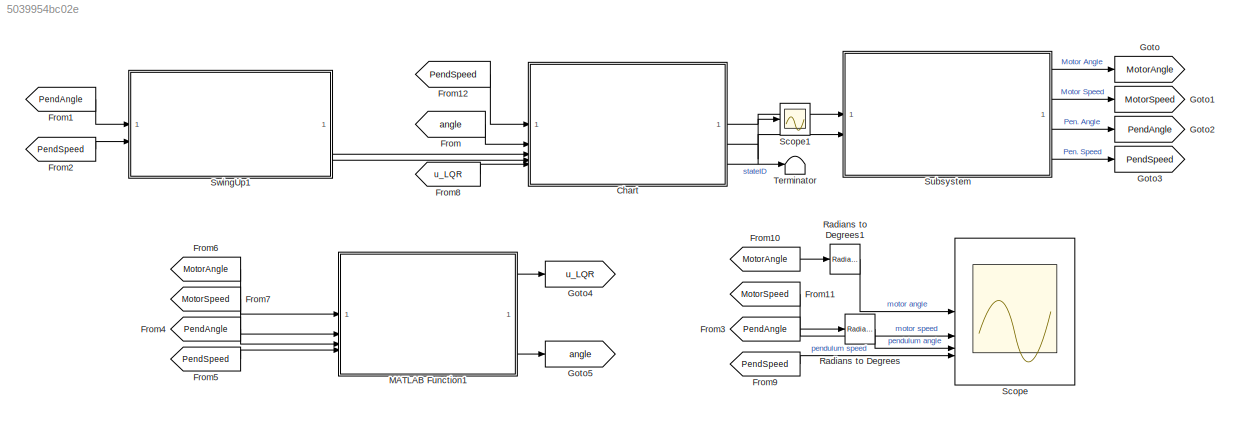
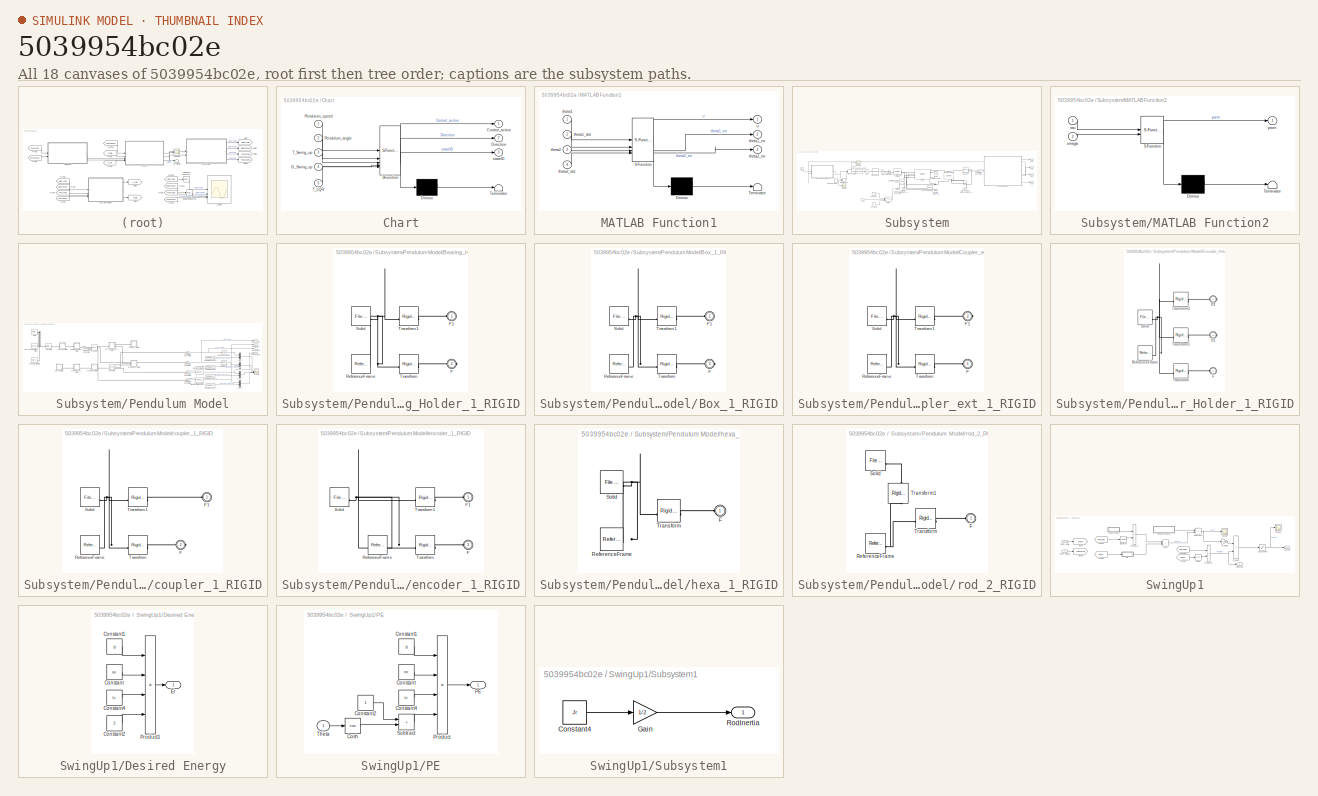
[diagram: thumbnail index - all 18 canvases of the model, root first then tree order]
MODEL slx_5039954bc02e
KIND model
CONFIG AbsTol = auto
CONFIG EnableMultiTasking = off
CONFIG FixedStep = 0.001
CONFIG MaxStep = 0.001
CONFIG MinStep = auto
CONFIG RelTol = 1e-3
CONFIG SampleTimeConstraint = Unconstrained
CONFIG SolverName = FixedStepAuto
CONFIG StartTime = 0.0
CONFIG StopTime = inf
WORKSPACE source: external: MATLAB File  (data not in archive)
BLOCK [SubSystem] Chart
  ErrorFcn = Stateflow.Translate.translate
  PermitHierarchicalResolution = ExplicitOnly
  PortSchema = {"entries":[{"content":{"sides":[{"content":{"connectorIds":["In1","In3","In2","In4","In5"]},"type":"ConnectorPlacement.EquallySpacedRectSide","uuid":"2e8d9252-ab42-449a-96c3-4e06d664c326"},{"content":{"connectorIds":["Out1","Out2","Out3"],"side":"RIGHT"},"type":"ConnectorPlacement.EquallySpacedRectSide","uuid":"944f291f-ee8a-4402-a6cd-5f62be233e4f"},{"content":{"side":"TOP"},"type":"ConnectorPlac...<+260ch>
  SFBlockType = Chart
  TreatAsAtomicUnit = on
BLOCK [Demux] Chart/ Demux 
  Outputs = 1
BLOCK [S-Function] Chart/ SFunction 
  EnableBusSupport = on
  FunctionName = sf_sfun
  PortCounts = [5 4]
  SFcnIsStateOwnerBlock = off
  SFunctionDeploymentMode = off
  Tag = Stateflow S-Function 3
BLOCK [Terminator] Chart/ Terminator 
BLOCK [Outport] Chart/Control_action
BLOCK [Inport] Chart/D_Swing_up
  Port = 4
BLOCK [Outport] Chart/Direction
  Port = 2
BLOCK [Inport] Chart/Pendulum_angle
  Port = 2
BLOCK [Inport] Chart/Pendulum_speed
BLOCK [Inport] Chart/T_LQR
  Port = 5
BLOCK [Inport] Chart/T_Swing_up
  Port = 3
BLOCK [Outport] Chart/stateID
  Port = 3
BLOCK [From] From
  GotoTag = angle
BLOCK [From] From1
  GotoTag = PendAngle
BLOCK [From] From10
  GotoTag = MotorAngle
BLOCK [From] From11
  GotoTag = MotorSpeed
BLOCK [From] From12
  GotoTag = PendSpeed
BLOCK [From] From2
  GotoTag = PendSpeed
BLOCK [From] From3
  GotoTag = PendAngle
BLOCK [From] From4
  GotoTag = PendAngle
BLOCK [From] From5
  GotoTag = PendSpeed
BLOCK [From] From6
  GotoTag = MotorAngle
BLOCK [From] From7
  GotoTag = MotorSpeed
BLOCK [From] From8
  GotoTag = u_LQR
BLOCK [From] From9
  GotoTag = PendSpeed
BLOCK [Goto] Goto
  GotoTag = MotorAngle
BLOCK [Goto] Goto1
  GotoTag = MotorSpeed
BLOCK [Goto] Goto2
  GotoTag = PendAngle
BLOCK [Goto] Goto3
  GotoTag = PendSpeed
BLOCK [Goto] Goto4
  GotoTag = u_LQR
BLOCK [Goto] Goto5
  GotoTag = angle
BLOCK [SubSystem] MATLAB Function1
  ErrorFcn = Stateflow.Translate.translate
  NameLocation = top
  PermitHierarchicalResolution = ExplicitOnly
  SFBlockType = MATLAB Function
  SystemSampleTime = 0.001
  TreatAsAtomicUnit = on
BLOCK [Demux] MATLAB Function1/ Demux 
  Outputs = 1
BLOCK [S-Function] MATLAB Function1/ SFunction 
  EnableBusSupport = on
  FunctionName = sf_sfun
  PortCounts = [4 4]
  SFcnIsStateOwnerBlock = off
  SFunctionDeploymentMode = off
  Tag = Stateflow S-Function 1
BLOCK [Terminator] MATLAB Function1/ Terminator 
BLOCK [Inport] MATLAB Function1/theta1
BLOCK [Inport] MATLAB Function1/theta1_dot
  Port = 2
BLOCK [Outport] MATLAB Function1/theta1_err
  Port = 2
BLOCK [Inport] MATLAB Function1/theta2
  Port = 3
BLOCK [Inport] MATLAB Function1/theta2_dot
  Port = 4
BLOCK [Outport] MATLAB Function1/theta2_err
  Port = 3
BLOCK [Outport] MATLAB Function1/u
BLOCK [Reference] Radians to Degrees  REF=simulink_extras/Transformations/Radians
to Degrees
  SourceBlock = simulink_extras/Transformations/Radians\nto Degrees
  SourceType = RadiansToDegrees
BLOCK [Reference] Radians to Degrees1  REF=simulink_extras/Transformations/Radians
to Degrees
  SourceBlock = simulink_extras/Transformations/Radians\nto Degrees
  SourceType = RadiansToDegrees
BLOCK [Scope] Scope
  Floating = off
  NumInputPorts = 4
  ScopeSpecificationString = Simulink.scopes.TimeScopeBlockCfg('CurrentConfiguration', extmgr.ConfigurationSet(extmgr.Configuration('Core','General UI',true),extmgr.Configuration('Core','Source UI',true),extmgr.Configuration('Sources','WiredSimulink',true,'DataLoggingVariableName','ScopeData1'),extmgr.Configuration('Visuals','Time Domain',true,'SerializedDisplays',{struct('MinYLimReal','-224.97096','MaxYLimReal','224.94809','...<+3972ch>
BLOCK [Scope] Scope1
  Floating = off
  NumInputPorts = 1
  ScopeSpecificationString = Simulink.scopes.TimeScopeBlockCfg('CurrentConfiguration', extmgr.ConfigurationSet(extmgr.Configuration('Core','General UI',true),extmgr.Configuration('Core','Source UI',true),extmgr.Configuration('Sources','WiredSimulink',true,'DataLoggingVariableName','ScopeData3'),extmgr.Configuration('Visuals','Time Domain',true,'SerializedDisplays',{struct('MinYLimReal','-3.18875','MaxYLimReal','3.0176','YLabe...<+1491ch>
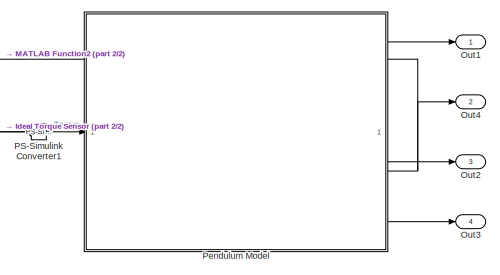
[diagram: Subsystem - part 1/2, middle right region]
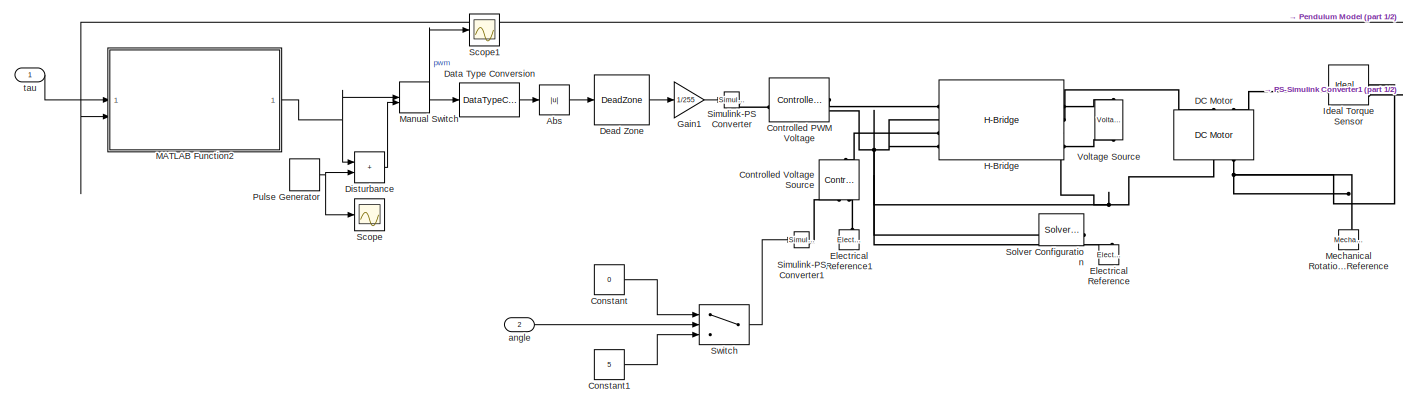
[diagram: Subsystem - part 2/2, most of the canvas]
BLOCK [SubSystem] Subsystem
BLOCK [Abs] Subsystem/Abs
  SaturateOnIntegerOverflow = off
BLOCK [Constant] Subsystem/Constant
  Value = 0
BLOCK [Constant] Subsystem/Constant1
  Value = 5
BLOCK [Reference] Subsystem/Controlled PWM Voltage  REF=ee_lib/Integrated Circuits/Controlled PWM
Voltage
  SourceBlock = ee_lib/Integrated Circuits/Controlled PWM\nVoltage
  SourceType = Controlled PWM\nVoltage
BLOCK [Reference] Subsystem/Controlled Voltage Source  REF=fl_lib/Electrical/Electrical Sources/Controlled Voltage
Source
  NameLocation = right
  SourceBlock = fl_lib/Electrical/Electrical Sources/Controlled Voltage\nSource
  SourceType = Controlled Voltage\nSource
BLOCK [Reference] Subsystem/DC Motor  REF=ee_lib/Electromechanical/Brushed Motors/DC Motor
  NameLocation = right
  SourceBlock = ee_lib/Electromechanical/Brushed Motors/DC Motor
  SourceType = DC Motor
BLOCK [DataTypeConversion] Subsystem/Data Type Conversion
  OutDataTypeStr = double
  RndMeth = Floor
  SaturateOnIntegerOverflow = off
BLOCK [DeadZone] Subsystem/Dead Zone
  LinearizeAsGain = off
  LowerValue = 0
  UpperValue = 55
BLOCK [Sum] Subsystem/Disturbance
  IconShape = rectangular
BLOCK [Reference] Subsystem/Electrical Reference  REF=fl_lib/Electrical/Electrical Elements/Electrical Reference
  NameLocation = right
  SourceBlock = fl_lib/Electrical/Electrical Elements/Electrical Reference
  SourceType = Electrical Reference
BLOCK [Reference] Subsystem/Electrical Reference1  REF=fl_lib/Electrical/Electrical Elements/Electrical Reference
  NameLocation = right
  SourceBlock = fl_lib/Electrical/Electrical Elements/Electrical Reference
  SourceType = Electrical Reference
BLOCK [Gain] Subsystem/Gain1
  Gain = 1/255
BLOCK [Reference] Subsystem/H-Bridge  REF=ee_lib/Semiconductors &
Converters/Converters/H-Bridge
  SourceBlock = ee_lib/Semiconductors &\nConverters/Converters/H-Bridge
  SourceType = H-Bridge
BLOCK [Reference] Subsystem/Ideal Torque Sensor  REF=fl_lib/Mechanical/Mechanical Sensors/Ideal Torque Sensor
  SourceBlock = fl_lib/Mechanical/Mechanical Sensors/Ideal Torque Sensor
  SourceType = Ideal Torque Sensor
BLOCK [SubSystem] Subsystem/MATLAB Function2
  ErrorFcn = Stateflow.Translate.translate
  PermitHierarchicalResolution = ExplicitOnly
  SFBlockType = MATLAB Function
  TreatAsAtomicUnit = on
BLOCK [Demux] Subsystem/MATLAB Function2/ Demux 
  Outputs = 1
BLOCK [S-Function] Subsystem/MATLAB Function2/ SFunction 
  EnableBusSupport = on
  FunctionName = sf_sfun
  PortCounts = [2 2]
  SFcnIsStateOwnerBlock = off
  SFunctionDeploymentMode = off
  Tag = Stateflow S-Function 4
BLOCK [Terminator] Subsystem/MATLAB Function2/ Terminator 
BLOCK [Inport] Subsystem/MATLAB Function2/omega
  Port = 2
BLOCK [Outport] Subsystem/MATLAB Function2/pwm
BLOCK [Inport] Subsystem/MATLAB Function2/tau
BLOCK [ManualSwitch] Subsystem/Manual Switch
  CurrentSetting = 0
BLOCK [Reference] Subsystem/Mechanical Rotational Reference  REF=fl_lib/Mechanical/Rotational Elements/Mechanical
Rotational Reference
  NameLocation = right
  SourceBlock = fl_lib/Mechanical/Rotational Elements/Mechanical\nRotational Reference
  SourceType = Mechanical\nRotational Reference
BLOCK [Outport] Subsystem/Out1
BLOCK [Outport] Subsystem/Out2
  Port = 3
BLOCK [Outport] Subsystem/Out3
  Port = 4
BLOCK [Outport] Subsystem/Out4
  Port = 2
BLOCK [Reference] Subsystem/PS-Simulink Converter1  REF=nesl_utility/PS-Simulink
Converter
  SourceBlock = nesl_utility/PS-Simulink\nConverter
  SourceType = PS-Simulink\nConverter
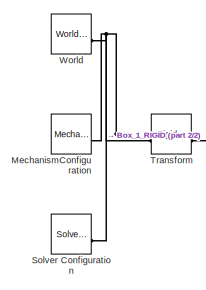
[diagram: Subsystem/Pendulum Model - part 1/2, middle left region]
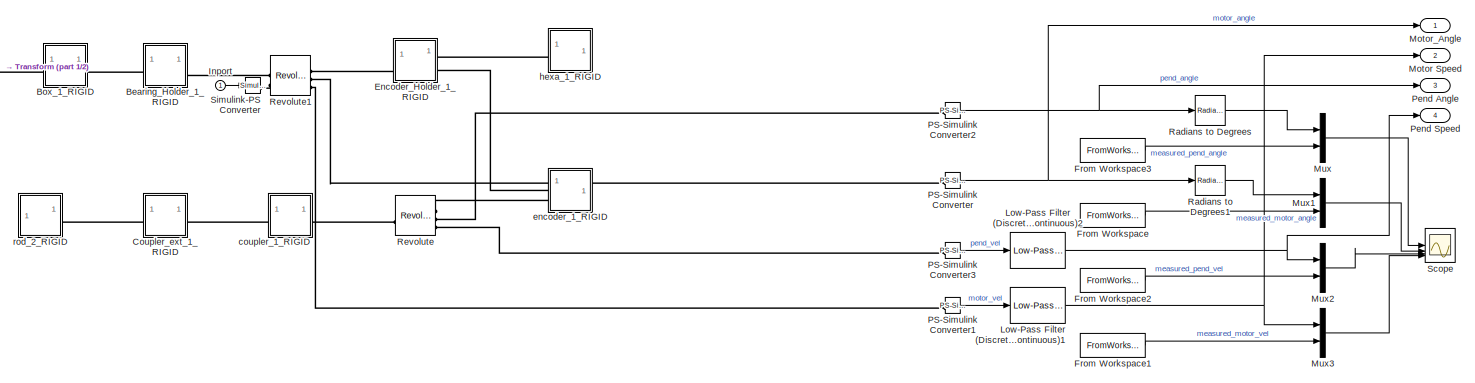
[diagram: Subsystem/Pendulum Model - part 2/2, most of the canvas]
BLOCK [SubSystem] Subsystem/Pendulum Model
BLOCK [SubSystem] Subsystem/Pendulum Model/Bearing_Holder_1_RIGID
BLOCK [PMIOPort] Subsystem/Pendulum Model/Bearing_Holder_1_RIGID/F
  Port = 2
  Side = Right
BLOCK [PMIOPort] Subsystem/Pendulum Model/Bearing_Holder_1_RIGID/F1
  Side = Left
BLOCK [Reference] Subsystem/Pendulum Model/Bearing_Holder_1_RIGID/ReferenceFrame  REF=sm_lib/Frames and
Transforms/Reference
Frame
  SourceBlock = sm_lib/Frames and\nTransforms/Reference\nFrame
  SourceType = Reference\nFrame
BLOCK [Reference] Subsystem/Pendulum Model/Bearing_Holder_1_RIGID/Solid  REF=sm_lib/Body Elements/File Solid
  SourceBlock = sm_lib/Body Elements/File Solid
  SourceType = File Solid
BLOCK [Reference] Subsystem/Pendulum Model/Bearing_Holder_1_RIGID/Transform  REF=sm_lib/Frames and
Transforms/Rigid
Transform
  SourceBlock = sm_lib/Frames and\nTransforms/Rigid\nTransform
  SourceType = Rigid\nTransform
BLOCK [Reference] Subsystem/Pendulum Model/Bearing_Holder_1_RIGID/Transform1  REF=sm_lib/Frames and
Transforms/Rigid
Transform
  SourceBlock = sm_lib/Frames and\nTransforms/Rigid\nTransform
  SourceType = Rigid\nTransform
BLOCK [SubSystem] Subsystem/Pendulum Model/Box_1_RIGID
BLOCK [PMIOPort] Subsystem/Pendulum Model/Box_1_RIGID/F
  Port = 2
  Side = Right
BLOCK [PMIOPort] Subsystem/Pendulum Model/Box_1_RIGID/F1
  Side = Left
BLOCK [Reference] Subsystem/Pendulum Model/Box_1_RIGID/ReferenceFrame  REF=sm_lib/Frames and
Transforms/Reference
Frame
  SourceBlock = sm_lib/Frames and\nTransforms/Reference\nFrame
  SourceType = Reference\nFrame
BLOCK [Reference] Subsystem/Pendulum Model/Box_1_RIGID/Solid  REF=sm_lib/Body Elements/File Solid
  SourceBlock = sm_lib/Body Elements/File Solid
  SourceType = File Solid
BLOCK [Reference] Subsystem/Pendulum Model/Box_1_RIGID/Transform  REF=sm_lib/Frames and
Transforms/Rigid
Transform
  SourceBlock = sm_lib/Frames and\nTransforms/Rigid\nTransform
  SourceType = Rigid\nTransform
BLOCK [Reference] Subsystem/Pendulum Model/Box_1_RIGID/Transform1  REF=sm_lib/Frames and
Transforms/Rigid
Transform
  SourceBlock = sm_lib/Frames and\nTransforms/Rigid\nTransform
  SourceType = Rigid\nTransform
BLOCK [SubSystem] Subsystem/Pendulum Model/Coupler_ext_1_RIGID
BLOCK [PMIOPort] Subsystem/Pendulum Model/Coupler_ext_1_RIGID/F
  Side = Left
BLOCK [PMIOPort] Subsystem/Pendulum Model/Coupler_ext_1_RIGID/F1
  Port = 2
  Side = Right
BLOCK [Reference] Subsystem/Pendulum Model/Coupler_ext_1_RIGID/ReferenceFrame  REF=sm_lib/Frames and
Transforms/Reference
Frame
  SourceBlock = sm_lib/Frames and\nTransforms/Reference\nFrame
  SourceType = Reference\nFrame
BLOCK [Reference] Subsystem/Pendulum Model/Coupler_ext_1_RIGID/Solid  REF=sm_lib/Body Elements/File Solid
  SourceBlock = sm_lib/Body Elements/File Solid
  SourceType = File Solid
BLOCK [Reference] Subsystem/Pendulum Model/Coupler_ext_1_RIGID/Transform  REF=sm_lib/Frames and
Transforms/Rigid
Transform
  SourceBlock = sm_lib/Frames and\nTransforms/Rigid\nTransform
  SourceType = Rigid\nTransform
BLOCK [Reference] Subsystem/Pendulum Model/Coupler_ext_1_RIGID/Transform1  REF=sm_lib/Frames and
Transforms/Rigid
Transform
  SourceBlock = sm_lib/Frames and\nTransforms/Rigid\nTransform
  SourceType = Rigid\nTransform
BLOCK [SubSystem] Subsystem/Pendulum Model/Encoder_Holder_1_RIGID
BLOCK [PMIOPort] Subsystem/Pendulum Model/Encoder_Holder_1_RIGID/F
  Port = 2
  Side = Left
BLOCK [PMIOPort] Subsystem/Pendulum Model/Encoder_Holder_1_RIGID/F1
  Port = 3
  Side = Right
BLOCK [PMIOPort] Subsystem/Pendulum Model/Encoder_Holder_1_RIGID/F2
  Side = Right
BLOCK [Reference] Subsystem/Pendulum Model/Encoder_Holder_1_RIGID/ReferenceFrame  REF=sm_lib/Frames and
Transforms/Reference
Frame
  SourceBlock = sm_lib/Frames and\nTransforms/Reference\nFrame
  SourceType = Reference\nFrame
BLOCK [Reference] Subsystem/Pendulum Model/Encoder_Holder_1_RIGID/Solid  REF=sm_lib/Body Elements/File Solid
  SourceBlock = sm_lib/Body Elements/File Solid
  SourceType = File Solid
BLOCK [Reference] Subsystem/Pendulum Model/Encoder_Holder_1_RIGID/Transform  REF=sm_lib/Frames and
Transforms/Rigid
Transform
  SourceBlock = sm_lib/Frames and\nTransforms/Rigid\nTransform
  SourceType = Rigid\nTransform
BLOCK [Reference] Subsystem/Pendulum Model/Encoder_Holder_1_RIGID/Transform1  REF=sm_lib/Frames and
Transforms/Rigid
Transform
  SourceBlock = sm_lib/Frames and\nTransforms/Rigid\nTransform
  SourceType = Rigid\nTransform
BLOCK [Reference] Subsystem/Pendulum Model/Encoder_Holder_1_RIGID/Transform2  REF=sm_lib/Frames and
Transforms/Rigid
Transform
  SourceBlock = sm_lib/Frames and\nTransforms/Rigid\nTransform
  SourceType = Rigid\nTransform
BLOCK [FromWorkspace] Subsystem/Pendulum Model/From Workspace
  Commented = on
  VariableName = ts_arm_angle1
BLOCK [FromWorkspace] Subsystem/Pendulum Model/From Workspace1
  Commented = on
  VariableName = ts_arm_speed1
BLOCK [FromWorkspace] Subsystem/Pendulum Model/From Workspace2
  Commented = on
  VariableName = ts_pend_speed1
BLOCK [FromWorkspace] Subsystem/Pendulum Model/From Workspace3
  Commented = on
  VariableName = ts_pend_angle1
BLOCK [Inport] Subsystem/Pendulum Model/Inport
BLOCK [Reference] Subsystem/Pendulum Model/Low-Pass Filter (Discrete or Continuous)1  REF=eeGeneralControl/Low-Pass Filter
(Discrete or Continuous)
  LibrarySourceBlock = ee_sl_lib/General Control/Low-Pass Filter\n(Discrete or Continuous)
  SourceBlock = eeGeneralControl/Low-Pass Filter\n(Discrete or Continuous)
  SourceType = Low-Pass Filter (Discrete or Continuous)
BLOCK [Reference] Subsystem/Pendulum Model/Low-Pass Filter (Discrete or Continuous)2  REF=eeGeneralControl/Low-Pass Filter
(Discrete or Continuous)
  LibrarySourceBlock = ee_sl_lib/General Control/Low-Pass Filter\n(Discrete or Continuous)
  SourceBlock = eeGeneralControl/Low-Pass Filter\n(Discrete or Continuous)
  SourceType = Low-Pass Filter (Discrete or Continuous)
BLOCK [Reference] Subsystem/Pendulum Model/MechanismConfiguration  REF=sm_lib/Utilities/Mechanism
Configuration
  SourceBlock = sm_lib/Utilities/Mechanism\nConfiguration
  SourceType = Mechanism\nConfiguration
BLOCK [Outport] Subsystem/Pendulum Model/Motor Speed
  Port = 2
BLOCK [Outport] Subsystem/Pendulum Model/Motor_Angle
BLOCK [Mux] Subsystem/Pendulum Model/Mux
  DisplayOption = bar
  Inputs = 2
BLOCK [Mux] Subsystem/Pendulum Model/Mux1
  DisplayOption = bar
  Inputs = 2
BLOCK [Mux] Subsystem/Pendulum Model/Mux2
  DisplayOption = bar
  Inputs = 2
BLOCK [Mux] Subsystem/Pendulum Model/Mux3
  DisplayOption = bar
  Inputs = 2
BLOCK [Reference] Subsystem/Pendulum Model/PS-Simulink Converter  REF=nesl_utility/PS-Simulink
Converter
  SourceBlock = nesl_utility/PS-Simulink\nConverter
  SourceType = PS-Simulink\nConverter
BLOCK [Reference] Subsystem/Pendulum Model/PS-Simulink Converter1  REF=nesl_utility/PS-Simulink
Converter
  SourceBlock = nesl_utility/PS-Simulink\nConverter
  SourceType = PS-Simulink\nConverter
BLOCK [Reference] Subsystem/Pendulum Model/PS-Simulink Converter2  REF=nesl_utility/PS-Simulink
Converter
  SourceBlock = nesl_utility/PS-Simulink\nConverter
  SourceType = PS-Simulink\nConverter
BLOCK [Reference] Subsystem/Pendulum Model/PS-Simulink Converter3  REF=nesl_utility/PS-Simulink
Converter
  SourceBlock = nesl_utility/PS-Simulink\nConverter
  SourceType = PS-Simulink\nConverter
BLOCK [Outport] Subsystem/Pendulum Model/Pend Angle
  Port = 3
BLOCK [Outport] Subsystem/Pendulum Model/Pend Speed
  Port = 4
BLOCK [Reference] Subsystem/Pendulum Model/Radians to Degrees  REF=simulink_extras/Transformations/Radians
to Degrees
  SourceBlock = simulink_extras/Transformations/Radians\nto Degrees
  SourceType = RadiansToDegrees
BLOCK [Reference] Subsystem/Pendulum Model/Radians to Degrees1  REF=simulink_extras/Transformations/Radians
to Degrees
  SourceBlock = simulink_extras/Transformations/Radians\nto Degrees
  SourceType = RadiansToDegrees
BLOCK [Reference] Subsystem/Pendulum Model/Revolute  REF=sm_lib/Joints/Revolute Joint
  SourceBlock = sm_lib/Joints/Revolute Joint
  SourceType = Revolute Joint
BLOCK [Reference] Subsystem/Pendulum Model/Revolute1  REF=sm_lib/Joints/Revolute Joint
  SourceBlock = sm_lib/Joints/Revolute Joint
  SourceType = Revolute Joint
BLOCK [Scope] Subsystem/Pendulum Model/Scope
  Floating = off
  NumInputPorts = 4
  ScopeSpecificationString = Simulink.scopes.TimeScopeBlockCfg('CurrentConfiguration', extmgr.ConfigurationSet(extmgr.Configuration('Core','General UI',true),extmgr.Configuration('Core','Source UI',true),extmgr.Configuration('Sources','WiredSimulink',true),extmgr.Configuration('Visuals','Time Domain',true,'SerializedDisplays',{struct('MinYLimReal','-224.83125','MaxYLimReal','224.98125','YLabelReal','','MinYLimMag',' 0.00000',...<+4083ch>
BLOCK [Reference] Subsystem/Pendulum Model/Simulink-PS Converter  REF=nesl_utility/Simulink-PS
Converter
  SourceBlock = nesl_utility/Simulink-PS\nConverter
  SourceType = Simulink-PS\nConverter
BLOCK [Reference] Subsystem/Pendulum Model/Solver Configuration  REF=nesl_utility/Solver
Configuration
  SourceBlock = nesl_utility/Solver\nConfiguration
  SourceType = Solver\nConfiguration
BLOCK [Reference] Subsystem/Pendulum Model/Transform  REF=sm_lib/Frames and
Transforms/Rigid
Transform
  SourceBlock = sm_lib/Frames and\nTransforms/Rigid\nTransform
  SourceType = Rigid\nTransform
BLOCK [Reference] Subsystem/Pendulum Model/World  REF=sm_lib/Frames and
Transforms/World Frame
  SourceBlock = sm_lib/Frames and\nTransforms/World Frame
  SourceType = World Frame
BLOCK [SubSystem] Subsystem/Pendulum Model/coupler_1_RIGID
BLOCK [PMIOPort] Subsystem/Pendulum Model/coupler_1_RIGID/F
  Port = 2
  Side = Right
BLOCK [PMIOPort] Subsystem/Pendulum Model/coupler_1_RIGID/F1
  Side = Left
BLOCK [Reference] Subsystem/Pendulum Model/coupler_1_RIGID/ReferenceFrame  REF=sm_lib/Frames and
Transforms/Reference
Frame
  SourceBlock = sm_lib/Frames and\nTransforms/Reference\nFrame
  SourceType = Reference\nFrame
BLOCK [Reference] Subsystem/Pendulum Model/coupler_1_RIGID/Solid  REF=sm_lib/Body Elements/File Solid
  SourceBlock = sm_lib/Body Elements/File Solid
  SourceType = File Solid
BLOCK [Reference] Subsystem/Pendulum Model/coupler_1_RIGID/Transform  REF=sm_lib/Frames and
Transforms/Rigid
Transform
  SourceBlock = sm_lib/Frames and\nTransforms/Rigid\nTransform
  SourceType = Rigid\nTransform
BLOCK [Reference] Subsystem/Pendulum Model/coupler_1_RIGID/Transform1  REF=sm_lib/Frames and
Transforms/Rigid
Transform
  SourceBlock = sm_lib/Frames and\nTransforms/Rigid\nTransform
  SourceType = Rigid\nTransform
BLOCK [SubSystem] Subsystem/Pendulum Model/encoder_1_RIGID
BLOCK [PMIOPort] Subsystem/Pendulum Model/encoder_1_RIGID/F
  Port = 2
  Side = Left
BLOCK [PMIOPort] Subsystem/Pendulum Model/encoder_1_RIGID/F1
  Side = Left
BLOCK [Reference] Subsystem/Pendulum Model/encoder_1_RIGID/ReferenceFrame  REF=sm_lib/Frames and
Transforms/Reference
Frame
  SourceBlock = sm_lib/Frames and\nTransforms/Reference\nFrame
  SourceType = Reference\nFrame
BLOCK [Reference] Subsystem/Pendulum Model/encoder_1_RIGID/Solid  REF=sm_lib/Body Elements/File Solid
  SourceBlock = sm_lib/Body Elements/File Solid
  SourceType = File Solid
BLOCK [Reference] Subsystem/Pendulum Model/encoder_1_RIGID/Transform  REF=sm_lib/Frames and
Transforms/Rigid
Transform
  SourceBlock = sm_lib/Frames and\nTransforms/Rigid\nTransform
  SourceType = Rigid\nTransform
BLOCK [Reference] Subsystem/Pendulum Model/encoder_1_RIGID/Transform1  REF=sm_lib/Frames and
Transforms/Rigid
Transform
  SourceBlock = sm_lib/Frames and\nTransforms/Rigid\nTransform
  SourceType = Rigid\nTransform
BLOCK [SubSystem] Subsystem/Pendulum Model/hexa_1_RIGID
BLOCK [PMIOPort] Subsystem/Pendulum Model/hexa_1_RIGID/F
  Side = Left
BLOCK [Reference] Subsystem/Pendulum Model/hexa_1_RIGID/ReferenceFrame  REF=sm_lib/Frames and
Transforms/Reference
Frame
  SourceBlock = sm_lib/Frames and\nTransforms/Reference\nFrame
  SourceType = Reference\nFrame
BLOCK [Reference] Subsystem/Pendulum Model/hexa_1_RIGID/Solid  REF=sm_lib/Body Elements/File Solid
  SourceBlock = sm_lib/Body Elements/File Solid
  SourceType = File Solid
BLOCK [Reference] Subsystem/Pendulum Model/hexa_1_RIGID/Transform  REF=sm_lib/Frames and
Transforms/Rigid
Transform
  SourceBlock = sm_lib/Frames and\nTransforms/Rigid\nTransform
  SourceType = Rigid\nTransform
BLOCK [SubSystem] Subsystem/Pendulum Model/rod_2_RIGID
  NameLocation = top
BLOCK [PMIOPort] Subsystem/Pendulum Model/rod_2_RIGID/F
  Side = Left
BLOCK [Reference] Subsystem/Pendulum Model/rod_2_RIGID/ReferenceFrame  REF=sm_lib/Frames and
Transforms/Reference
Frame
  SourceBlock = sm_lib/Frames and\nTransforms/Reference\nFrame
  SourceType = Reference\nFrame
BLOCK [Reference] Subsystem/Pendulum Model/rod_2_RIGID/Solid  REF=sm_lib/Body Elements/File Solid
  SourceBlock = sm_lib/Body Elements/File Solid
  SourceType = File Solid
BLOCK [Reference] Subsystem/Pendulum Model/rod_2_RIGID/Transform  REF=sm_lib/Frames and
Transforms/Rigid
Transform
  SourceBlock = sm_lib/Frames and\nTransforms/Rigid\nTransform
  SourceType = Rigid\nTransform
BLOCK [Reference] Subsystem/Pendulum Model/rod_2_RIGID/Transform1  REF=sm_lib/Frames and
Transforms/Rigid
Transform
  NameLocation = left
  SourceBlock = sm_lib/Frames and\nTransforms/Rigid\nTransform
  SourceType = Rigid\nTransform
BLOCK [DiscretePulseGenerator] Subsystem/Pulse Generator
  Amplitude = 110
  Period = 500
  PhaseDelay = 2
  PulseType = Time based
  PulseWidth = 0.05
BLOCK [Scope] Subsystem/Scope
  Floating = off
  NumInputPorts = 1
  ScopeSpecificationString = Simulink.scopes.TimeScopeBlockCfg('CurrentConfiguration', extmgr.ConfigurationSet(extmgr.Configuration('Core','General UI',true),extmgr.Configuration('Core','Source UI',true),extmgr.Configuration('Sources','WiredSimulink',true,'DataLoggingVariableName','ScopeData2'),extmgr.Configuration('Visuals','Time Domain',true,'SerializedDisplays',{struct('MinYLimReal','-13.75','MaxYLimReal','123.75','YLabelR...<+1480ch>
BLOCK [Scope] Subsystem/Scope1
  Floating = off
  NumInputPorts = 1
  ScopeSpecificationString = Simulink.scopes.TimeScopeBlockCfg('CurrentConfiguration', extmgr.ConfigurationSet(extmgr.Configuration('Core','General UI',true),extmgr.Configuration('Core','Source UI',true),extmgr.Configuration('Sources','WiredSimulink',true,'DataLoggingVariableName','ScopeData1'),extmgr.Configuration('Visuals','Time Domain',true,'SerializedDisplays',{struct('MinYLimReal','-273.75','MaxYLimReal','363.75','YLabel...<+1547ch>
BLOCK [Reference] Subsystem/Simulink-PS Converter  REF=nesl_utility/Simulink-PS
Converter
  SourceBlock = nesl_utility/Simulink-PS\nConverter
  SourceType = Simulink-PS\nConverter
BLOCK [Reference] Subsystem/Simulink-PS Converter1  REF=nesl_utility/Simulink-PS
Converter
  SourceBlock = nesl_utility/Simulink-PS\nConverter
  SourceType = Simulink-PS\nConverter
BLOCK [Reference] Subsystem/Solver Configuration  REF=nesl_utility/Solver
Configuration
  SourceBlock = nesl_utility/Solver\nConfiguration
  SourceType = Solver\nConfiguration
BLOCK [Switch] Subsystem/Switch
  InputSameDT = off
  SaturateOnIntegerOverflow = off
BLOCK [Reference] Subsystem/Voltage Source  REF=ee_lib/Sources/Voltage Source
  NameLocation = right
  SourceBlock = ee_lib/Sources/Voltage Source
  SourceType = Voltage Source
BLOCK [Inport] Subsystem/angle
  Port = 2
BLOCK [Inport] Subsystem/tau
BLOCK [SubSystem] SwingUp1
BLOCK [Sum] SwingUp1/Add1
  IconShape = rectangular
BLOCK [Trigonometry] SwingUp1/Cos1
  Operator = cos
BLOCK [SubSystem] SwingUp1/Desired Energy
BLOCK [Constant] SwingUp1/Desired Energy/Constant
  Value = mr
BLOCK [Constant] SwingUp1/Desired Energy/Constant1
  Value = g
BLOCK [Constant] SwingUp1/Desired Energy/Constant2
  Value = 2
BLOCK [Constant] SwingUp1/Desired Energy/Constant4
  Value = Lr
BLOCK [Outport] SwingUp1/Desired Energy/Er
BLOCK [Product] SwingUp1/Desired Energy/Product3
  Inputs = 4
BLOCK [Outport] SwingUp1/Direction
  Port = 2
BLOCK [From] SwingUp1/From1
  GotoTag = ThetaDot
BLOCK [From] SwingUp1/From10
  GotoTag = ThetaDot
BLOCK [From] SwingUp1/From2
  GotoTag = Theta
BLOCK [From] SwingUp1/From6
  GotoTag = Theta
BLOCK [Goto] SwingUp1/Goto
  GotoTag = Theta
BLOCK [Goto] SwingUp1/Goto1
  GotoTag = ThetaDot
BLOCK [Gain] SwingUp1/K_swing
  Gain = k_sim
BLOCK [SubSystem] SwingUp1/PE
BLOCK [Constant] SwingUp1/PE/Constant
  Value = mr
BLOCK [Constant] SwingUp1/PE/Constant1
  Value = g
BLOCK [Constant] SwingUp1/PE/Constant2
BLOCK [Constant] SwingUp1/PE/Constant4
  Value = Lr
BLOCK [Trigonometry] SwingUp1/PE/Cosh
  Operator = cos
BLOCK [Outport] SwingUp1/PE/PE
BLOCK [Product] SwingUp1/PE/Product
  Inputs = 4
BLOCK [Sum] SwingUp1/PE/Subtract
  IconShape = rectangular
BLOCK [Inport] SwingUp1/PE/Theta
BLOCK [Inport] SwingUp1/Pend Angle
BLOCK [Inport] SwingUp1/Pend Speed
  Port = 2
BLOCK [Product] SwingUp1/Product
BLOCK [Product] SwingUp1/Product1
BLOCK [Product] SwingUp1/Product3
BLOCK [Saturate] SwingUp1/Saturation
  LowerLimit = -3
  UpperLimit = 3
BLOCK [Scope] SwingUp1/Scope
  Floating = off
  NumInputPorts = 1
  ScopeSpecificationString = Simulink.scopes.TimeScopeBlockCfg('CurrentConfiguration', extmgr.ConfigurationSet(extmgr.Configuration('Core','General UI',true),extmgr.Configuration('Core','Source UI',true),extmgr.Configuration('Sources','WiredSimulink',true,'DataLoggingVariableName','ScopeData2'),extmgr.Configuration('Visuals','Time Domain',true,'SerializedDisplays',{struct('MinYLimReal','-0.01163','MaxYLimReal','0.02633','YLab...<+1507ch>
BLOCK [Scope] SwingUp1/Scope1
  Floating = off
  NumInputPorts = 1
  ScopeSpecificationString = Simulink.scopes.TimeScopeBlockCfg('CurrentConfiguration', extmgr.ConfigurationSet(extmgr.Configuration('Core','General UI',true),extmgr.Configuration('Core','Source UI',true),extmgr.Configuration('Sources','WiredSimulink',true,'DataLoggingVariableName','ScopeData1'),extmgr.Configuration('Visuals','Time Domain',true,'SerializedDisplays',{struct('MinYLimReal','-0.59117','MaxYLimReal','0.58563','YLab...<+1454ch>
BLOCK [Math] SwingUp1/Square3
  Operator = square
BLOCK [SubSystem] SwingUp1/Subsystem1
BLOCK [Constant] SwingUp1/Subsystem1/Constant4
  Value = Jr
BLOCK [Gain] SwingUp1/Subsystem1/Gain
  Gain = 1/2
BLOCK [Outport] SwingUp1/Subsystem1/RodInertia
BLOCK [Sum] SwingUp1/Subtract1
  IconShape = rectangular
  Inputs = +-
BLOCK [Outport] SwingUp1/Tourqe
BLOCK [Terminator] Terminator
NET Chart:1 -> Scope1:1, Subsystem:1
LINE Chart:2 -> Subsystem:2
LINE Chart:3 -> Terminator:1
LINE From10:1 -> Radians to Degrees1:1
LINE From11:1 -> Scope:2
LINE From12:1 -> Chart:1
LINE From1:1 -> SwingUp1:1
LINE From2:1 -> SwingUp1:2
LINE From3:1 -> Radians to Degrees:1
LINE From4:1 -> MATLAB Function1:3
LINE From5:1 -> MATLAB Function1:4
LINE From6:1 -> MATLAB Function1:1
LINE From7:1 -> MATLAB Function1:2
LINE From8:1 -> Chart:5
LINE From9:1 -> Scope:4
LINE From:1 -> Chart:2
LINE MATLAB Function1:1 -> Goto4:1
LINE MATLAB Function1:3 -> Goto5:1
LINE Radians to Degrees1:1 -> Scope:1
LINE Radians to Degrees:1 -> Scope:3
LINE Subsystem/Abs:1 -> Subsystem/Dead Zone:1
LINE Subsystem/Constant1:1 -> Subsystem/Switch:3
LINE Subsystem/Constant:1 -> Subsystem/Switch:1
LINE Subsystem/Data Type Conversion:1 -> Subsystem/Abs:1
LINE Subsystem/Dead Zone:1 -> Subsystem/Gain1:1
LINE Subsystem/Disturbance:1 -> Subsystem/Manual Switch:2
LINE Subsystem/Gain1:1 -> Subsystem/Simulink-PS Converter:1
NET Subsystem/MATLAB Function2:1 -> Subsystem/Disturbance:1, Subsystem/Manual Switch:1
NET Subsystem/Manual Switch:1 -> Subsystem/Data Type Conversion:1, Subsystem/Scope1:1
LINE Subsystem/PS-Simulink Converter1:1 -> Subsystem/Pendulum Model:1
LINE Subsystem/Pendulum Model/From Workspace1:1 -> Subsystem/Pendulum Model/Mux3:2
LINE Subsystem/Pendulum Model/From Workspace2:1 -> Subsystem/Pendulum Model/Mux2:2
LINE Subsystem/Pendulum Model/From Workspace3:1 -> Subsystem/Pendulum Model/Mux:2
LINE Subsystem/Pendulum Model/From Workspace:1 -> Subsystem/Pendulum Model/Mux1:2
LINE Subsystem/Pendulum Model/Inport:1 -> Subsystem/Pendulum Model/Simulink-PS Converter:1
NET Subsystem/Pendulum Model/Low-Pass Filter (Discrete or Continuous)1:1 -> Subsystem/Pendulum Model/Motor Speed:1, Subsystem/Pendulum Model/Mux3:1
NET Subsystem/Pendulum Model/Low-Pass Filter (Discrete or Continuous)2:1 -> Subsystem/Pendulum Model/Mux2:1, Subsystem/Pendulum Model/Pend Speed:1
LINE Subsystem/Pendulum Model/Mux1:1 -> Subsystem/Pendulum Model/Scope:2
LINE Subsystem/Pendulum Model/Mux2:1 -> Subsystem/Pendulum Model/Scope:3
LINE Subsystem/Pendulum Model/Mux3:1 -> Subsystem/Pendulum Model/Scope:4
LINE Subsystem/Pendulum Model/Mux:1 -> Subsystem/Pendulum Model/Scope:1
LINE Subsystem/Pendulum Model/PS-Simulink Converter1:1 -> Subsystem/Pendulum Model/Low-Pass Filter (Discrete or Continuous)1:1
NET Subsystem/Pendulum Model/PS-Simulink Converter2:1 -> Subsystem/Pendulum Model/Pend Angle:1, Subsystem/Pendulum Model/Radians to Degrees:1
LINE Subsystem/Pendulum Model/PS-Simulink Converter3:1 -> Subsystem/Pendulum Model/Low-Pass Filter (Discrete or Continuous)2:1
NET Subsystem/Pendulum Model/PS-Simulink Converter:1 -> Subsystem/Pendulum Model/Motor_Angle:1, Subsystem/Pendulum Model/Radians to Degrees1:1
LINE Subsystem/Pendulum Model/Radians to Degrees1:1 -> Subsystem/Pendulum Model/Mux1:1
LINE Subsystem/Pendulum Model/Radians to Degrees:1 -> Subsystem/Pendulum Model/Mux:1
LINE Subsystem/Pendulum Model:1 -> Subsystem/Out1:1
NET Subsystem/Pendulum Model:2 -> Subsystem/MATLAB Function2:2, Subsystem/Out4:1
LINE Subsystem/Pendulum Model:3 -> Subsystem/Out2:1
LINE Subsystem/Pendulum Model:4 -> Subsystem/Out3:1
NET Subsystem/Pulse Generator:1 -> Subsystem/Disturbance:2, Subsystem/Scope:1
LINE Subsystem/Switch:1 -> Subsystem/Simulink-PS Converter1:1
LINE Subsystem/angle:1 -> Subsystem/Switch:2
LINE Subsystem/tau:1 -> Subsystem/MATLAB Function2:1
LINE Subsystem:1 -> Goto:1
LINE Subsystem:2 -> Goto1:1
LINE Subsystem:3 -> Goto2:1
LINE Subsystem:4 -> Goto3:1
LINE SwingUp1/Add1:1 -> SwingUp1/Subtract1:2
LINE SwingUp1/Cos1:1 -> SwingUp1/Product3:2
LINE SwingUp1/Desired Energy/Constant1:1 -> SwingUp1/Desired Energy/Product3:1
LINE SwingUp1/Desired Energy/Constant2:1 -> SwingUp1/Desired Energy/Product3:4
LINE SwingUp1/Desired Energy/Constant4:1 -> SwingUp1/Desired Energy/Product3:3
LINE SwingUp1/Desired Energy/Constant:1 -> SwingUp1/Desired Energy/Product3:2
LINE SwingUp1/Desired Energy/Product3:1 -> SwingUp1/Desired Energy/Er:1
LINE SwingUp1/Desired Energy:1 -> SwingUp1/Subtract1:1
LINE SwingUp1/From10:1 -> SwingUp1/Product3:1
LINE SwingUp1/From1:1 -> SwingUp1/Square3:1
LINE SwingUp1/From2:1 -> SwingUp1/Cos1:1
LINE SwingUp1/From6:1 -> SwingUp1/PE:1
LINE SwingUp1/K_swing:1 -> SwingUp1/Product:1
LINE SwingUp1/PE/Constant1:1 -> SwingUp1/PE/Product:1
LINE SwingUp1/PE/Constant2:1 -> SwingUp1/PE/Subtract:1
LINE SwingUp1/PE/Constant4:1 -> SwingUp1/PE/Product:3
LINE SwingUp1/PE/Constant:1 -> SwingUp1/PE/Product:2
LINE SwingUp1/PE/Cosh:1 -> SwingUp1/PE/Subtract:2
LINE SwingUp1/PE/Product:1 -> SwingUp1/PE/PE:1
LINE SwingUp1/PE/Subtract:1 -> SwingUp1/PE/Product:4
LINE SwingUp1/PE/Theta:1 -> SwingUp1/PE/Cosh:1
LINE SwingUp1/PE:1 -> SwingUp1/Add1:2
LINE SwingUp1/Pend Angle:1 -> SwingUp1/Goto:1
LINE SwingUp1/Pend Speed:1 -> SwingUp1/Goto1:1
LINE SwingUp1/Product1:1 -> SwingUp1/Add1:1
NET SwingUp1/Product3:1 -> SwingUp1/Direction:1, SwingUp1/Product:2
LINE SwingUp1/Product:1 -> SwingUp1/Saturation:1
NET SwingUp1/Saturation:1 -> SwingUp1/Scope1:1, SwingUp1/Tourqe:1
LINE SwingUp1/Square3:1 -> SwingUp1/Product1:2
LINE SwingUp1/Subsystem1/Constant4:1 -> SwingUp1/Subsystem1/Gain:1
LINE SwingUp1/Subsystem1/Gain:1 -> SwingUp1/Subsystem1/RodInertia:1
LINE SwingUp1/Subsystem1:1 -> SwingUp1/Product1:1
NET SwingUp1/Subtract1:1 -> SwingUp1/K_swing:1, SwingUp1/Scope:1
LINE SwingUp1:1 -> Chart:3
LINE SwingUp1:2 -> Chart:4
PLINE Subsystem/Controlled PWM Voltage:LConn1 -- Subsystem/Simulink-PS Converter:RConn1
PLINE Subsystem/Controlled PWM Voltage:RConn1 -- Subsystem/H-Bridge:LConn1
PNET net1: Subsystem/Controlled PWM Voltage:RConn2 -- Subsystem/DC Motor:RConn1 -- Subsystem/Electrical Reference:LConn1 -- Subsystem/H-Bridge:LConn2 -- Subsystem/H-Bridge:LConn4 -- Subsystem/H-Bridge:RConn3 -- Subsystem/Solver Configuration:RConn1
PLINE Subsystem/Controlled Voltage Source:LConn1 -- Subsystem/H-Bridge:LConn3
PLINE Subsystem/Controlled Voltage Source:RConn1 -- Subsystem/Simulink-PS Converter1:RConn1
PLINE Subsystem/Controlled Voltage Source:RConn2 -- Subsystem/Electrical Reference1:LConn1
PLINE Subsystem/DC Motor:LConn1 -- Subsystem/H-Bridge:RConn2
PLINE Subsystem/DC Motor:LConn2 -- Subsystem/Ideal Torque Sensor:LConn1
PNET net2: Subsystem/DC Motor:RConn2 -- Subsystem/Ideal Torque Sensor:RConn1 -- Subsystem/Mechanical Rotational Reference:LConn1
PLINE Subsystem/H-Bridge:RConn1 -- Subsystem/Voltage Source:LConn1
PLINE Subsystem/H-Bridge:RConn4 -- Subsystem/Voltage Source:RConn1
PLINE Subsystem/Ideal Torque Sensor:RConn2 -- Subsystem/PS-Simulink Converter1:LConn1
PLINE Subsystem/Pendulum Model/Bearing_Holder_1_RIGID/F1:RConn1 -- Subsystem/Pendulum Model/Bearing_Holder_1_RIGID/Transform1:RConn1
PLINE Subsystem/Pendulum Model/Bearing_Holder_1_RIGID/F:RConn1 -- Subsystem/Pendulum Model/Bearing_Holder_1_RIGID/Transform:RConn1
PNET net3: Subsystem/Pendulum Model/Bearing_Holder_1_RIGID/ReferenceFrame:RConn1 -- Subsystem/Pendulum Model/Bearing_Holder_1_RIGID/Solid:RConn1 -- Subsystem/Pendulum Model/Bearing_Holder_1_RIGID/Transform1:LConn1 -- Subsystem/Pendulum Model/Bearing_Holder_1_RIGID/Transform:LConn1
PLINE Subsystem/Pendulum Model/Bearing_Holder_1_RIGID:LConn1 -- Subsystem/Pendulum Model/Box_1_RIGID:RConn1
PLINE Subsystem/Pendulum Model/Bearing_Holder_1_RIGID:RConn1 -- Subsystem/Pendulum Model/Revolute1:LConn1
PLINE Subsystem/Pendulum Model/Box_1_RIGID/F1:RConn1 -- Subsystem/Pendulum Model/Box_1_RIGID/Transform1:RConn1
PLINE Subsystem/Pendulum Model/Box_1_RIGID/F:RConn1 -- Subsystem/Pendulum Model/Box_1_RIGID/Transform:RConn1
PNET net4: Subsystem/Pendulum Model/Box_1_RIGID/ReferenceFrame:RConn1 -- Subsystem/Pendulum Model/Box_1_RIGID/Solid:RConn1 -- Subsystem/Pendulum Model/Box_1_RIGID/Transform1:LConn1 -- Subsystem/Pendulum Model/Box_1_RIGID/Transform:LConn1
PLINE Subsystem/Pendulum Model/Box_1_RIGID:LConn1 -- Subsystem/Pendulum Model/Transform:RConn1
PLINE Subsystem/Pendulum Model/Coupler_ext_1_RIGID/F1:RConn1 -- Subsystem/Pendulum Model/Coupler_ext_1_RIGID/Transform1:RConn1
PLINE Subsystem/Pendulum Model/Coupler_ext_1_RIGID/F:RConn1 -- Subsystem/Pendulum Model/Coupler_ext_1_RIGID/Transform:RConn1
PNET net5: Subsystem/Pendulum Model/Coupler_ext_1_RIGID/ReferenceFrame:RConn1 -- Subsystem/Pendulum Model/Coupler_ext_1_RIGID/Solid:RConn1 -- Subsystem/Pendulum Model/Coupler_ext_1_RIGID/Transform1:LConn1 -- Subsystem/Pendulum Model/Coupler_ext_1_RIGID/Transform:LConn1
PLINE Subsystem/Pendulum Model/Coupler_ext_1_RIGID:LConn1 -- Subsystem/Pendulum Model/rod_2_RIGID:LConn1
PLINE Subsystem/Pendulum Model/Coupler_ext_1_RIGID:RConn1 -- Subsystem/Pendulum Model/coupler_1_RIGID:LConn1
PLINE Subsystem/Pendulum Model/Encoder_Holder_1_RIGID/F1:RConn1 -- Subsystem/Pendulum Model/Encoder_Holder_1_RIGID/Transform1:RConn1
PLINE Subsystem/Pendulum Model/Encoder_Holder_1_RIGID/F2:RConn1 -- Subsystem/Pendulum Model/Encoder_Holder_1_RIGID/Transform2:RConn1
PLINE Subsystem/Pendulum Model/Encoder_Holder_1_RIGID/F:RConn1 -- Subsystem/Pendulum Model/Encoder_Holder_1_RIGID/Transform:RConn1
PNET net6: Subsystem/Pendulum Model/Encoder_Holder_1_RIGID/ReferenceFrame:RConn1 -- Subsystem/Pendulum Model/Encoder_Holder_1_RIGID/Solid:RConn1 -- Subsystem/Pendulum Model/Encoder_Holder_1_RIGID/Transform1:LConn1 -- Subsystem/Pendulum Model/Encoder_Holder_1_RIGID/Transform2:LConn1 -- Subsystem/Pendulum Model/Encoder_Holder_1_RIGID/Transform:LConn1
PLINE Subsystem/Pendulum Model/Encoder_Holder_1_RIGID:LConn1 -- Subsystem/Pendulum Model/Revolute1:RConn1
PLINE Subsystem/Pendulum Model/Encoder_Holder_1_RIGID:RConn1 -- Subsystem/Pendulum Model/hexa_1_RIGID:LConn1
PLINE Subsystem/Pendulum Model/Encoder_Holder_1_RIGID:RConn2 -- Subsystem/Pendulum Model/encoder_1_RIGID:LConn1
PNET net7: Subsystem/Pendulum Model/MechanismConfiguration:RConn1 -- Subsystem/Pendulum Model/Solver Configuration:RConn1 -- Subsystem/Pendulum Model/Transform:LConn1 -- Subsystem/Pendulum Model/World:RConn1
PLINE Subsystem/Pendulum Model/PS-Simulink Converter1:LConn1 -- Subsystem/Pendulum Model/Revolute1:RConn3
PLINE Subsystem/Pendulum Model/PS-Simulink Converter2:LConn1 -- Subsystem/Pendulum Model/Revolute:RConn2
PLINE Subsystem/Pendulum Model/PS-Simulink Converter3:LConn1 -- Subsystem/Pendulum Model/Revolute:RConn3
PLINE Subsystem/Pendulum Model/PS-Simulink Converter:LConn1 -- Subsystem/Pendulum Model/Revolute1:RConn2
PLINE Subsystem/Pendulum Model/Revolute1:LConn2 -- Subsystem/Pendulum Model/Simulink-PS Converter:RConn1
PLINE Subsystem/Pendulum Model/Revolute:LConn1 -- Subsystem/Pendulum Model/coupler_1_RIGID:RConn1
PLINE Subsystem/Pendulum Model/Revolute:RConn1 -- Subsystem/Pendulum Model/encoder_1_RIGID:LConn2
PLINE Subsystem/Pendulum Model/coupler_1_RIGID/F1:RConn1 -- Subsystem/Pendulum Model/coupler_1_RIGID/Transform1:RConn1
PLINE Subsystem/Pendulum Model/coupler_1_RIGID/F:RConn1 -- Subsystem/Pendulum Model/coupler_1_RIGID/Transform:RConn1
PNET net8: Subsystem/Pendulum Model/coupler_1_RIGID/ReferenceFrame:RConn1 -- Subsystem/Pendulum Model/coupler_1_RIGID/Solid:RConn1 -- Subsystem/Pendulum Model/coupler_1_RIGID/Transform1:LConn1 -- Subsystem/Pendulum Model/coupler_1_RIGID/Transform:LConn1
PLINE Subsystem/Pendulum Model/encoder_1_RIGID/F1:RConn1 -- Subsystem/Pendulum Model/encoder_1_RIGID/Transform1:RConn1
PLINE Subsystem/Pendulum Model/encoder_1_RIGID/F:RConn1 -- Subsystem/Pendulum Model/encoder_1_RIGID/Transform:RConn1
PNET net9: Subsystem/Pendulum Model/encoder_1_RIGID/ReferenceFrame:RConn1 -- Subsystem/Pendulum Model/encoder_1_RIGID/Solid:RConn1 -- Subsystem/Pendulum Model/encoder_1_RIGID/Transform1:LConn1 -- Subsystem/Pendulum Model/encoder_1_RIGID/Transform:LConn1
PLINE Subsystem/Pendulum Model/hexa_1_RIGID/F:RConn1 -- Subsystem/Pendulum Model/hexa_1_RIGID/Transform:RConn1
PNET net10: Subsystem/Pendulum Model/hexa_1_RIGID/ReferenceFrame:RConn1 -- Subsystem/Pendulum Model/hexa_1_RIGID/Solid:RConn1 -- Subsystem/Pendulum Model/hexa_1_RIGID/Transform:LConn1
PLINE Subsystem/Pendulum Model/rod_2_RIGID/F:RConn1 -- Subsystem/Pendulum Model/rod_2_RIGID/Transform:RConn1
PNET net11: Subsystem/Pendulum Model/rod_2_RIGID/ReferenceFrame:RConn1 -- Subsystem/Pendulum Model/rod_2_RIGID/Transform1:RConn1 -- Subsystem/Pendulum Model/rod_2_RIGID/Transform:LConn1
PLINE Subsystem/Pendulum Model/rod_2_RIGID/Solid:RConn1 -- Subsystem/Pendulum Model/rod_2_RIGID/Transform1:LConn1
note: NET lines group one-source signal fan-out (src -> all destinations, sorted); 1:1 wires keep LINE; PNET lines group multi-terminal physical nets as a canonical sorted terminal list (undirected conserving connections); 2-terminal nets keep the pairwise PLINE form
CHART MATLAB Function1 states=1 transitions=1
  STATE_LABEL 'eML_blk_kernel()'
  STATE_LABEL 'SCRIPT:\nfunction [u, theta1_err, theta2_err]= LQR_controller(theta1, theta1_dot, theta2, theta2_dot)\n% LQR stabilizer for Furuta pendulum\n% Upright at theta2 = 0 (or 2*pi)\n\n% LQR gain\nK_ = [-0.316227766016342,-0.203276132698185,5.614675633123943,0.557548956161459];\n% K_ = [-0.0100000000000004, -0.0857445820450138, 1.58797510295829, 0.147807220044965];\n% K_= [-6.3939 , -0.7431,  14.4867, 1.0360];\nK...<+499ch>'
CHART Chart states=3 transitions=6
  STATE_LABEL 'Swing_mode\nentry:\nControl_action = 0\nDirection = 0\nduring:\nstateID = 1\nif after(0.2,sec)\n    Control_action = T_Swing_up\n    Direction = sign(D_Swing_up)\nend'
  STATE_LABEL 'LQR_mode\nentry:\nControl_action = T_LQR\nDirection = sign(T_LQR)\nduring:\nstateID = 2\nControl_action = T_LQR\nDirection = sign(T_LQR)\n'
  STATE_LABEL 'Recovery_mode\nentry:\nstateID = 3\nControl_action = 0\nDirection = 0\nduring:\nControl_action = 0\nDirection = 0\n'
CHART Subsystem/MATLAB Function2 states=1 transitions=1
  STATE_LABEL 'eML_blk_kernel()'
  STATE_LABEL 'SCRIPT:\nfunction pwm = torque_to_pwm(tau, omega)\n\n% === Motor parameters (estimated) ===\nKt = (12/250)*60/(2*pi);       % Nm/A\nKe = Kt;       % V/(rad/s)\nR  =  5.8466;        % Ohms\nVmax = 12;       % Supply voltage\n\n% === Torque → Voltage ===\nV = (tau / Kt) * R + Ke * omega;\n\n% === Voltage → PWM ===\npwm = 255 * V / Vmax;\n\n% === Saturation ===\npwm = max(min(pwm,180),-180);\n\nend\n'
CHART  states=0 transitions=0
CHART  states=0 transitions=0
CHART  states=0 transitions=0
